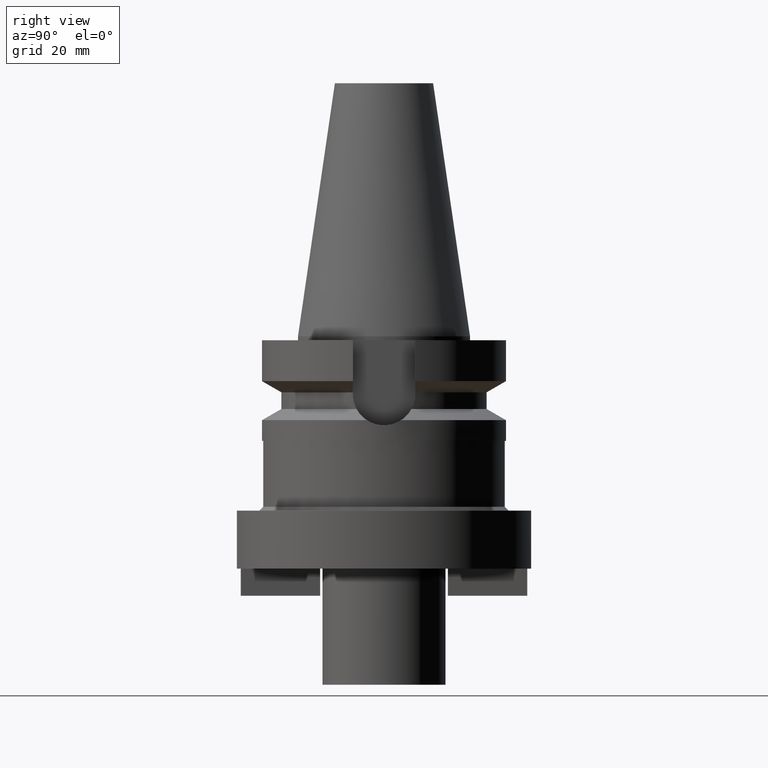
[diagram: clean part render]
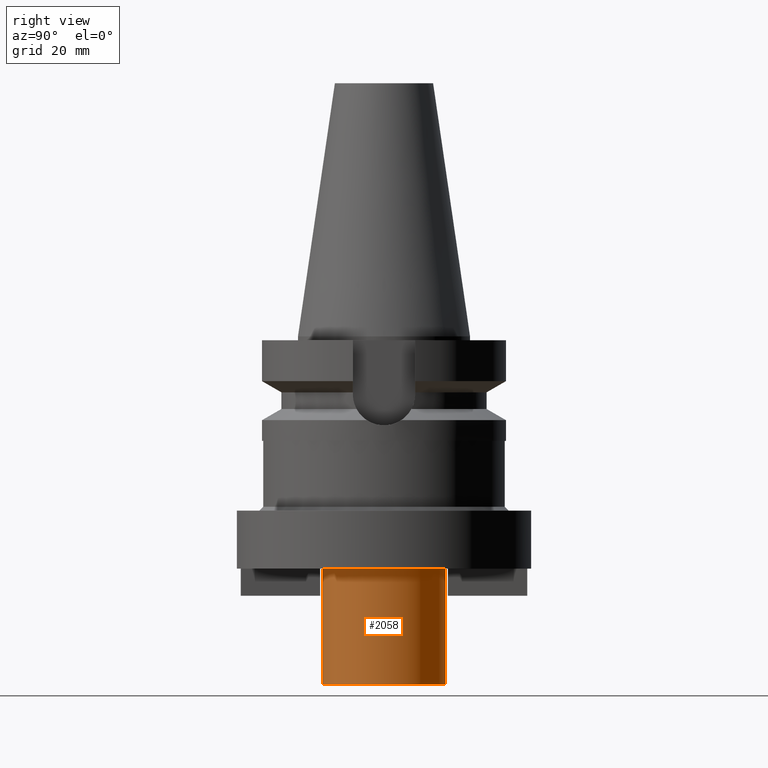
[diagram: same view with one face highlighted and labeled with its STEP entity id]
A machine part, right view. The second image highlights one B-rep face of the part: STEP entity #2058.
In plain terms, the highlighted cylindrical surface (partial cylindrical patch) has radius 15.875 mm, axis along (0, 0, -1).
Its self-contained STEP definition (entity closure, byte-faithful):
#775=CARTESIAN_POINT('',(0.E0,2.120720862083E-14,-6.E1));
#776=DIRECTION('',(0.E0,0.E0,-1.E0));
#777=DIRECTION('',(0.E0,1.E0,0.E0));
#778=AXIS2_PLACEMENT_3D('',#775,#776,#777);
#811=DIRECTION('',(0.E0,0.E0,-1.E0));
#812=VECTOR('',#811,3.E1);
#813=CARTESIAN_POINT('',(0.E0,-1.5875E1,-6.E1));
#814=LINE('',#813,#812);
#818=DIRECTION('',(0.E0,0.E0,-1.E0));
#819=VECTOR('',#818,3.E1);
#820=CARTESIAN_POINT('',(0.E0,1.5875E1,-6.E1));
#821=LINE('',#820,#819);
#825=CARTESIAN_POINT('',(0.E0,2.120720862083E-14,-9.E1));
#826=DIRECTION('',(0.E0,0.E0,1.E0));
#827=DIRECTION('',(0.E0,-1.E0,0.E0));
#828=AXIS2_PLACEMENT_3D('',#825,#826,#827);
#1307=CARTESIAN_POINT('',(0.E0,-1.5875E1,-9.E1));
#1308=CARTESIAN_POINT('',(0.E0,1.5875E1,-9.E1));
#1309=VERTEX_POINT('',#1307);
#1310=VERTEX_POINT('',#1308);
#1311=CARTESIAN_POINT('',(0.E0,1.5875E1,-6.E1));
#1312=VERTEX_POINT('',#1311);
#1313=CARTESIAN_POINT('',(0.E0,-1.5875E1,-6.E1));
#1314=VERTEX_POINT('',#1313);
#2046=CARTESIAN_POINT('',(0.E0,2.120720862083E-14,7.317E1));
#2047=DIRECTION('',(0.E0,0.E0,-1.E0));
#2048=DIRECTION('',(0.E0,-1.E0,0.E0));
#2049=AXIS2_PLACEMENT_3D('',#2046,#2047,#2048);
#2050=CYLINDRICAL_SURFACE('',#2049,1.5875E1);
#2051=ORIENTED_EDGE('',*,*,#2036,.T.);
#2053=ORIENTED_EDGE('',*,*,#2052,.F.);
#2054=ORIENTED_EDGE('',*,*,#2039,.F.);
#2055=ORIENTED_EDGE('',*,*,#2006,.F.);
#2056=EDGE_LOOP('',(#2051,#2053,#2054,#2055));
#2057=FACE_OUTER_BOUND('',#2056,.F.);
#779=CIRCLE('',#778,1.5875E1);
#829=CIRCLE('',#828,1.5875E1);
#2006=EDGE_CURVE('',#1312,#1314,#779,.T.);
#2036=EDGE_CURVE('',#1312,#1310,#821,.T.);
#2039=EDGE_CURVE('',#1314,#1309,#814,.T.);
#2052=EDGE_CURVE('',#1309,#1310,#829,.T.);
#2058=ADVANCED_FACE('',(#2057),#2050,.T.);